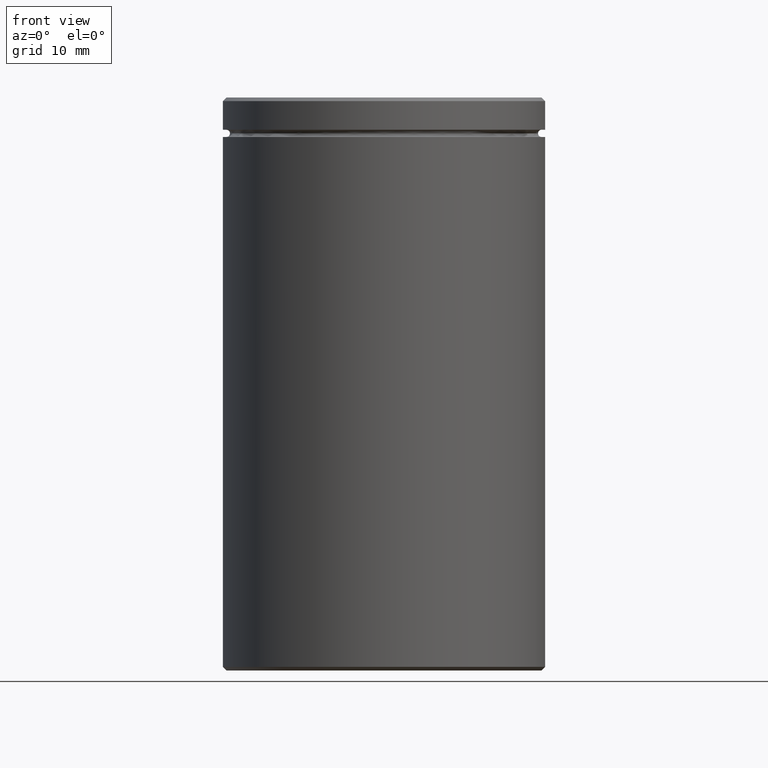
[diagram: clean part render]
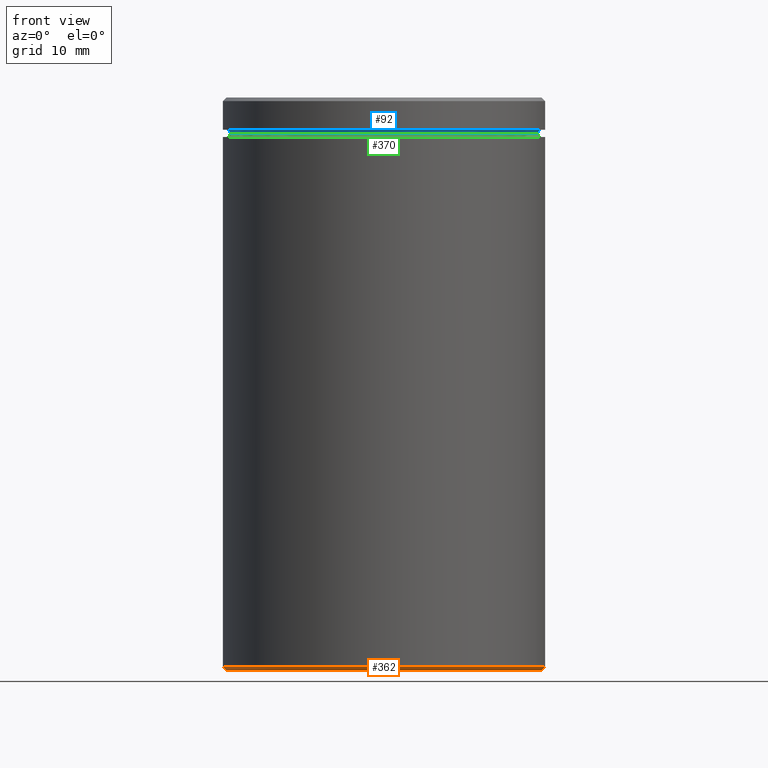
[diagram: same view with three faces highlighted in distinct colors, each labeled with its STEP entity id]
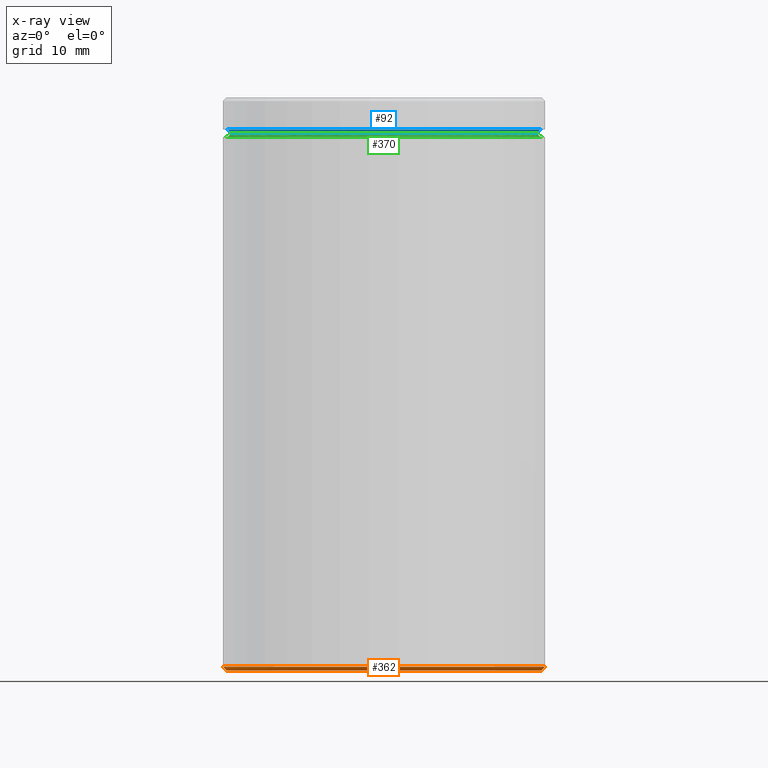
[diagram: x-ray of the same camera — body ghosted, the three highlighted faces saturated]
A machine part, front view with three faces highlighted in distinct colors.
The next image is the same camera in x-ray (body ghosted, the three faces saturated) — at least one of them is partly hidden behind the body in this view.
Their STEP definitions:

[orange] entity #362 — the highlighted conical surface has half-angle 45 deg.
#6 = CARTESIAN_POINT ( 'NONE',  ( -22.50000000000000000, 2.755455298081544778E-15, -79.49999999999998579 ) ) ;
#32 = ORIENTED_EDGE ( 'NONE', *, *, #240, .T. ) ;
#72 = CARTESIAN_POINT ( 'NONE',  ( -22.00000000000000000, 2.724839128102860991E-15, -80.00000000000000000 ) ) ;
#74 = VECTOR ( 'NONE', #389, 1000.000000000000000 ) ;
#76 = DIRECTION ( 'NONE',  ( -0.000000000000000000, -0.000000000000000000, 1.000000000000000000 ) ) ;
#113 = DIRECTION ( 'NONE',  ( 0.000000000000000000, 0.000000000000000000, -1.000000000000000000 ) ) ;
#123 = DIRECTION ( 'NONE',  ( -1.000000000000000000, 0.000000000000000000, 0.000000000000000000 ) ) ;
#127 = CIRCLE ( 'NONE', #168, 22.00000000000000000 ) ;
#137 = EDGE_CURVE ( 'NONE', #230, #138, #127, .T. ) ;
#138 = VERTEX_POINT ( 'NONE', #72 ) ;
#166 = CARTESIAN_POINT ( 'NONE',  ( 22.50000000000000000, 0.000000000000000000, -79.49999999999998579 ) ) ;
#168 = AXIS2_PLACEMENT_3D ( 'NONE', #546, #113, #297 ) ;
#174 = LINE ( 'NONE', #357, #499 ) ;
#180 = ORIENTED_EDGE ( 'NONE', *, *, #137, .F. ) ;
#193 = CIRCLE ( 'NONE', #258, 22.50000000000000000 ) ;
#197 = VERTEX_POINT ( 'NONE', #6 ) ;
#222 = DIRECTION ( 'NONE',  ( -0.000000000000000000, -0.000000000000000000, 1.000000000000000000 ) ) ;
#224 = ORIENTED_EDGE ( 'NONE', *, *, #428, .F. ) ;
#230 = VERTEX_POINT ( 'NONE', #405 ) ;
#240 = EDGE_CURVE ( 'NONE', #230, #450, #174, .T. ) ;
#247 = FACE_OUTER_BOUND ( 'NONE', #529, .T. ) ;
#258 = AXIS2_PLACEMENT_3D ( 'NONE', #315, #76, #123 ) ;
#297 = DIRECTION ( 'NONE',  ( -1.000000000000000000, 0.000000000000000000, 0.000000000000000000 ) ) ;
#313 = DIRECTION ( 'NONE',  ( 1.000000000000000000, 0.000000000000000000, 0.000000000000000000 ) ) ;
#315 = CARTESIAN_POINT ( 'NONE',  ( 0.000000000000000000, 0.000000000000000000, -79.49999999999998579 ) ) ;
#336 = CARTESIAN_POINT ( 'NONE',  ( 0.000000000000000000, 0.000000000000000000, -79.49999999999998579 ) ) ;
#339 = CONICAL_SURFACE ( 'NONE', #350, 22.50000000000000000, 0.7853981633974346233 ) ;
#343 = ORIENTED_EDGE ( 'NONE', *, *, #404, .F. ) ;
#350 = AXIS2_PLACEMENT_3D ( 'NONE', #336, #222, #313 ) ;
#357 = CARTESIAN_POINT ( 'NONE',  ( 22.50000000000000000, 0.000000000000000000, -79.49999999999998579 ) ) ;
#358 = CARTESIAN_POINT ( 'NONE',  ( -22.50000000000000000, 2.755455298081544778E-15, -79.49999999999998579 ) ) ;
#362 = ADVANCED_FACE ( 'NONE', ( #247 ), #339, .T. ) ;
#389 = DIRECTION ( 'NONE',  ( -0.7071067811865378028, 8.659560562354814529E-17, 0.7071067811865573427 ) ) ;
#404 = EDGE_CURVE ( 'NONE', #197, #450, #193, .T. ) ;
#405 = CARTESIAN_POINT ( 'NONE',  ( 22.00000000000000000, 0.000000000000000000, -80.00000000000000000 ) ) ;
#428 = EDGE_CURVE ( 'NONE', #138, #197, #524, .T. ) ;
#450 = VERTEX_POINT ( 'NONE', #166 ) ;
#499 = VECTOR ( 'NONE', #523, 1000.000000000000000 ) ;
#523 = DIRECTION ( 'NONE',  ( 0.7071067811865378028, 0.000000000000000000, 0.7071067811865573427 ) ) ;
#524 = LINE ( 'NONE', #358, #74 ) ;
#529 = EDGE_LOOP ( 'NONE', ( #224, #180, #32, #343 ) ) ;
#546 = CARTESIAN_POINT ( 'NONE',  ( 0.000000000000000000, 0.000000000000000000, -80.00000000000000000 ) ) ;

[blue] entity #92 — the highlighted toroidal blend (fillet) surface has major radius 22 mm and minor (blend) radius 0.5 mm.
#33 = DIRECTION ( 'NONE',  ( -0.000000000000000000, -0.000000000000000000, 1.000000000000000000 ) ) ;
#45 = EDGE_CURVE ( 'NONE', #130, #136, #416, .T. ) ;
#73 = CARTESIAN_POINT ( 'NONE',  ( 22.00000000000000000, 2.694222958124176809E-15, -5.000000000000000888 ) ) ;
#83 = AXIS2_PLACEMENT_3D ( 'NONE', #537, #151, #143 ) ;
#92 = ADVANCED_FACE ( 'NONE', ( #309 ), #146, .F. ) ;
#122 = EDGE_LOOP ( 'NONE', ( #427, #267, #525, #520 ) ) ;
#130 = VERTEX_POINT ( 'NONE', #252 ) ;
#136 = VERTEX_POINT ( 'NONE', #346 ) ;
#143 = DIRECTION ( 'NONE',  ( -1.000000000000000000, 0.000000000000000000, 0.000000000000000000 ) ) ;
#146 = TOROIDAL_SURFACE ( 'NONE', #192, 22.00000000000000000, 0.5000000000000000000 ) ;
#151 = DIRECTION ( 'NONE',  ( -0.000000000000000000, -0.000000000000000000, 1.000000000000000000 ) ) ;
#167 = EDGE_CURVE ( 'NONE', #170, #130, #314, .T. ) ;
#170 = VERTEX_POINT ( 'NONE', #444 ) ;
#192 = AXIS2_PLACEMENT_3D ( 'NONE', #475, #433, #210 ) ;
#204 = DIRECTION ( 'NONE',  ( -1.000000000000000000, -1.224646799147349509E-16, 0.000000000000000000 ) ) ;
#210 = DIRECTION ( 'NONE',  ( -1.000000000000000000, 0.000000000000000000, 0.000000000000000000 ) ) ;
#223 = CARTESIAN_POINT ( 'NONE',  ( -22.00000000000000000, 0.000000000000000000, -5.000000000000000888 ) ) ;
#232 = EDGE_CURVE ( 'NONE', #170, #528, #518, .T. ) ;
#252 = CARTESIAN_POINT ( 'NONE',  ( 21.50000000000000000, 0.000000000000000000, -4.999999999999999112 ) ) ;
#267 = ORIENTED_EDGE ( 'NONE', *, *, #45, .T. ) ;
#308 = EDGE_CURVE ( 'NONE', #528, #136, #408, .T. ) ;
#309 = FACE_OUTER_BOUND ( 'NONE', #122, .T. ) ;
#314 = CIRCLE ( 'NONE', #481, 21.50000000000000000 ) ;
#346 = CARTESIAN_POINT ( 'NONE',  ( 22.00000000000000000, 2.694222958124176809E-15, -4.500000000000000888 ) ) ;
#385 = AXIS2_PLACEMENT_3D ( 'NONE', #223, #401, #566 ) ;
#399 = DIRECTION ( 'NONE',  ( -1.224646799147353207E-16, 1.000000000000000000, 0.000000000000000000 ) ) ;
#401 = DIRECTION ( 'NONE',  ( -0.000000000000000000, -1.000000000000000000, -0.000000000000000000 ) ) ;
#407 = AXIS2_PLACEMENT_3D ( 'NONE', #73, #399, #204 ) ;
#408 = CIRCLE ( 'NONE', #83, 22.00000000000000000 ) ;
#416 = CIRCLE ( 'NONE', #407, 0.5000000000000004441 ) ;
#427 = ORIENTED_EDGE ( 'NONE', *, *, #167, .T. ) ;
#433 = DIRECTION ( 'NONE',  ( 0.000000000000000000, 0.000000000000000000, -1.000000000000000000 ) ) ;
#435 = CARTESIAN_POINT ( 'NONE',  ( -22.00000000000000000, 0.000000000000000000, -4.500000000000000888 ) ) ;
#440 = CARTESIAN_POINT ( 'NONE',  ( 0.000000000000000000, 0.000000000000000000, -4.999999999999999112 ) ) ;
#444 = CARTESIAN_POINT ( 'NONE',  ( -21.50000000000000000, 2.663606788145493022E-15, -4.999999999999999112 ) ) ;
#475 = CARTESIAN_POINT ( 'NONE',  ( 0.000000000000000000, 0.000000000000000000, -5.000000000000000888 ) ) ;
#477 = DIRECTION ( 'NONE',  ( 1.000000000000000000, 0.000000000000000000, 0.000000000000000000 ) ) ;
#481 = AXIS2_PLACEMENT_3D ( 'NONE', #440, #33, #477 ) ;
#518 = CIRCLE ( 'NONE', #385, 0.5000000000000004441 ) ;
#520 = ORIENTED_EDGE ( 'NONE', *, *, #232, .F. ) ;
#525 = ORIENTED_EDGE ( 'NONE', *, *, #308, .F. ) ;
#528 = VERTEX_POINT ( 'NONE', #435 ) ;
#537 = CARTESIAN_POINT ( 'NONE',  ( 0.000000000000000000, 0.000000000000000000, -4.500000000000000888 ) ) ;
#566 = DIRECTION ( 'NONE',  ( 0.000000000000000000, 0.000000000000000000, -1.000000000000000000 ) ) ;

[green] entity #370 — the highlighted toroidal blend (fillet) surface has major radius 22 mm and minor (blend) radius 0.5 mm.
#33 = DIRECTION ( 'NONE',  ( -0.000000000000000000, -0.000000000000000000, 1.000000000000000000 ) ) ;
#55 = CARTESIAN_POINT ( 'NONE',  ( -22.00000000000000000, 2.694222958124176809E-15, -5.500000000000000000 ) ) ;
#58 = CARTESIAN_POINT ( 'NONE',  ( 0.000000000000000000, 0.000000000000000000, -5.500000000000000000 ) ) ;
#82 = CIRCLE ( 'NONE', #562, 0.5000000000000004441 ) ;
#86 = EDGE_CURVE ( 'NONE', #170, #396, #303, .T. ) ;
#109 = EDGE_CURVE ( 'NONE', #130, #333, #82, .T. ) ;
#115 = DIRECTION ( 'NONE',  ( 0.000000000000000000, 0.000000000000000000, -1.000000000000000000 ) ) ;
#128 = EDGE_LOOP ( 'NONE', ( #414, #510, #445, #277 ) ) ;
#130 = VERTEX_POINT ( 'NONE', #252 ) ;
#167 = EDGE_CURVE ( 'NONE', #170, #130, #314, .T. ) ;
#170 = VERTEX_POINT ( 'NONE', #444 ) ;
#183 = CARTESIAN_POINT ( 'NONE',  ( 0.000000000000000000, 0.000000000000000000, -4.999999999999999112 ) ) ;
#189 = AXIS2_PLACEMENT_3D ( 'NONE', #58, #460, #423 ) ;
#225 = FACE_OUTER_BOUND ( 'NONE', #128, .T. ) ;
#239 = AXIS2_PLACEMENT_3D ( 'NONE', #183, #487, #451 ) ;
#252 = CARTESIAN_POINT ( 'NONE',  ( 21.50000000000000000, 0.000000000000000000, -4.999999999999999112 ) ) ;
#260 = DIRECTION ( 'NONE',  ( -1.000000000000000000, 1.224646799147349509E-16, 0.000000000000000000 ) ) ;
#265 = DIRECTION ( 'NONE',  ( 0.000000000000000000, -1.000000000000000000, 0.000000000000000000 ) ) ;
#277 = ORIENTED_EDGE ( 'NONE', *, *, #109, .F. ) ;
#298 = EDGE_CURVE ( 'NONE', #333, #396, #443, .T. ) ;
#303 = CIRCLE ( 'NONE', #377, 0.5000000000000004441 ) ;
#304 = TOROIDAL_SURFACE ( 'NONE', #239, 22.00000000000000000, 0.5000000000000000000 ) ;
#314 = CIRCLE ( 'NONE', #481, 21.50000000000000000 ) ;
#333 = VERTEX_POINT ( 'NONE', #381 ) ;
#370 = ADVANCED_FACE ( 'NONE', ( #225 ), #304, .F. ) ;
#377 = AXIS2_PLACEMENT_3D ( 'NONE', #383, #565, #260 ) ;
#381 = CARTESIAN_POINT ( 'NONE',  ( 22.00000000000000000, 0.000000000000000000, -5.500000000000000000 ) ) ;
#383 = CARTESIAN_POINT ( 'NONE',  ( -22.00000000000000000, 2.694222958124176809E-15, -4.999999999999999112 ) ) ;
#396 = VERTEX_POINT ( 'NONE', #55 ) ;
#414 = ORIENTED_EDGE ( 'NONE', *, *, #167, .F. ) ;
#423 = DIRECTION ( 'NONE',  ( 1.000000000000000000, 0.000000000000000000, 0.000000000000000000 ) ) ;
#437 = CARTESIAN_POINT ( 'NONE',  ( 22.00000000000000000, 0.000000000000000000, -4.999999999999999112 ) ) ;
#440 = CARTESIAN_POINT ( 'NONE',  ( 0.000000000000000000, 0.000000000000000000, -4.999999999999999112 ) ) ;
#443 = CIRCLE ( 'NONE', #189, 22.00000000000000000 ) ;
#444 = CARTESIAN_POINT ( 'NONE',  ( -21.50000000000000000, 2.663606788145493022E-15, -4.999999999999999112 ) ) ;
#445 = ORIENTED_EDGE ( 'NONE', *, *, #298, .F. ) ;
#451 = DIRECTION ( 'NONE',  ( 1.000000000000000000, 0.000000000000000000, 0.000000000000000000 ) ) ;
#460 = DIRECTION ( 'NONE',  ( 0.000000000000000000, 0.000000000000000000, -1.000000000000000000 ) ) ;
#477 = DIRECTION ( 'NONE',  ( 1.000000000000000000, 0.000000000000000000, 0.000000000000000000 ) ) ;
#481 = AXIS2_PLACEMENT_3D ( 'NONE', #440, #33, #477 ) ;
#487 = DIRECTION ( 'NONE',  ( -0.000000000000000000, -0.000000000000000000, 1.000000000000000000 ) ) ;
#510 = ORIENTED_EDGE ( 'NONE', *, *, #86, .T. ) ;
#562 = AXIS2_PLACEMENT_3D ( 'NONE', #437, #265, #115 ) ;
#565 = DIRECTION ( 'NONE',  ( 1.224646799147353207E-16, 1.000000000000000000, 0.000000000000000000 ) ) ;